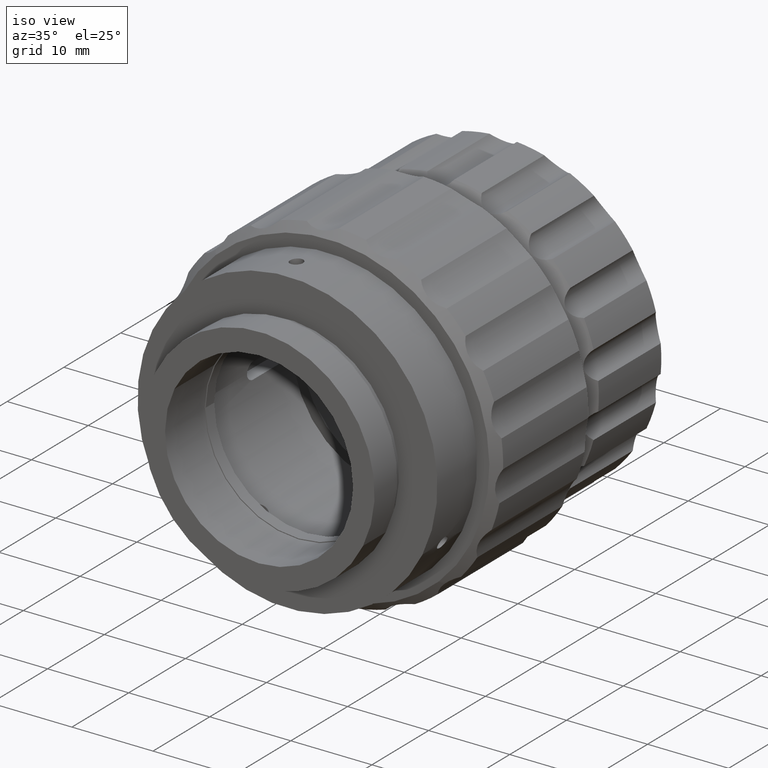
[diagram: clean part render]
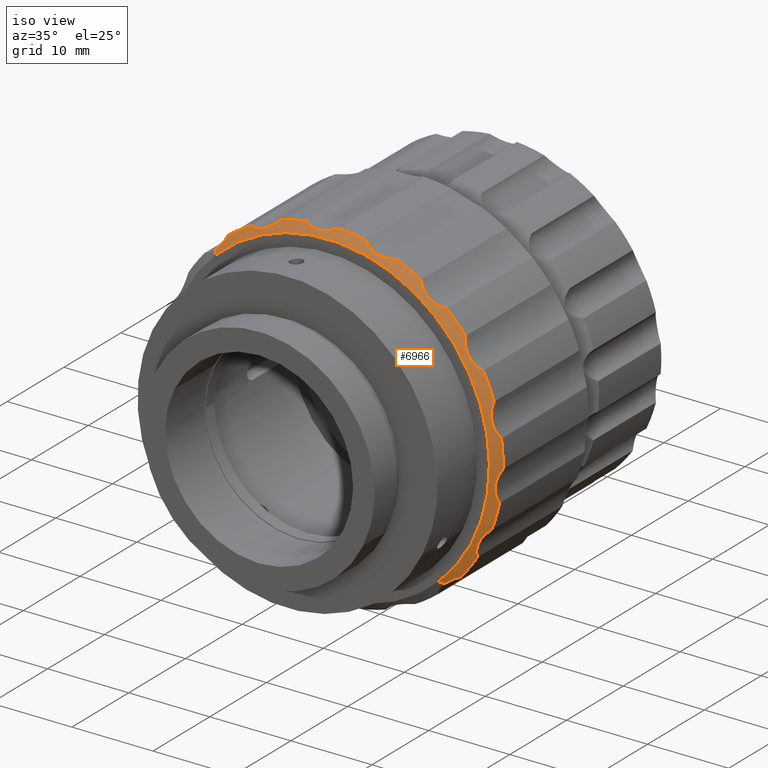
[diagram: same view with one face highlighted and labeled with its STEP entity id]
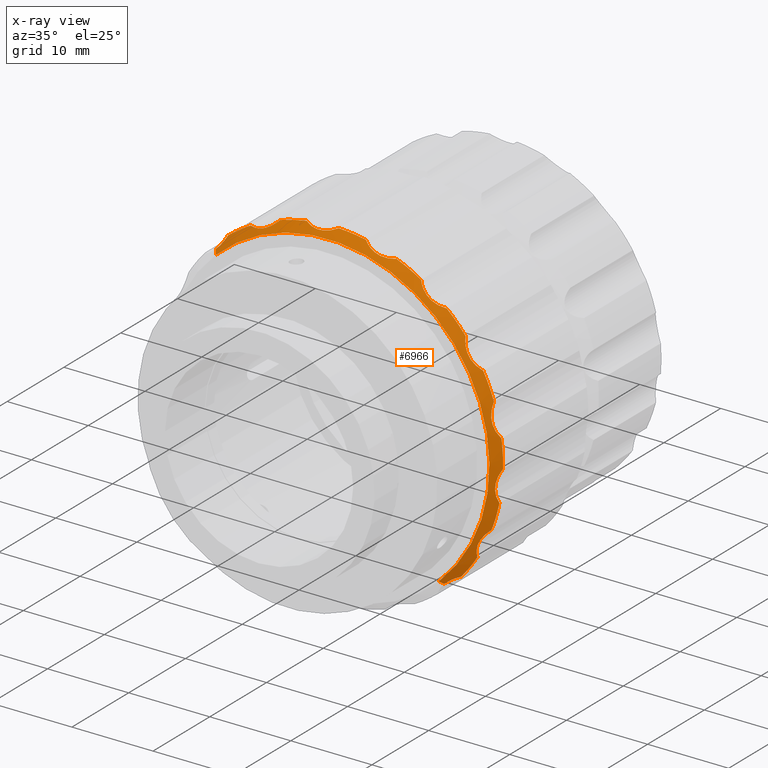
[diagram: x-ray of the same camera — body ghosted, the highlighted face saturated]
A machine part, iso view. The second image highlights one B-rep face of the part: STEP entity #6966.
The next image is the same camera in x-ray: the body ghosted, the highlighted face saturated — about 0% of this face is hidden behind the body in this view.
In plain terms, the highlighted conical surface has half-angle 45 deg.
Its self-contained STEP definition (entity closure, byte-faithful):
#27 = CARTESIAN_POINT ( 'NONE',  ( -0.5861440687324585008, -22.59411617957066909, 64.80552906689753456 ) ) ;
#46 = ORIENTED_EDGE ( 'NONE', *, *, #7699, .T. ) ;
#131 = CARTESIAN_POINT ( 'NONE',  ( 4.932007698426094322, -23.04857634177215431, 65.37785570986059724 ) ) ;
#179 = CARTESIAN_POINT ( 'NONE',  ( 4.055729949814518065, -22.99213833844308041, 65.37116788638181220 ) ) ;
#188 = AXIS2_PLACEMENT_3D ( 'NONE', #778, #8532, #5503 ) ;
#232 = CARTESIAN_POINT ( 'NONE',  ( 4.403457490567378230, -23.03731353386829284, 65.35543718338755070 ) ) ;
#248 = DIRECTION ( 'NONE',  ( 0.4859215937768002758, 0.7071067811865483499, -0.5136927142771378074 ) ) ;
#301 = CARTESIAN_POINT ( 'NONE',  ( -0.7231094470177840128, -22.67704321055556704, 64.67216818763810693 ) ) ;
#306 = CARTESIAN_POINT ( 'NONE',  ( 20.02060797558757343, -22.54875568700542843, 60.51190065472245294 ) ) ;
#316 = DIRECTION ( 'NONE',  ( 0.000000000000000000, -1.000000000000000000, -0.000000000000000000 ) ) ;
#358 = VERTEX_POINT ( 'NONE', #4219 ) ;
#403 = DIRECTION ( 'NONE',  ( 0.6871969081691013947, 0.000000000000000000, -0.7264712034229764415 ) ) ;
#436 = CARTESIAN_POINT ( 'NONE',  ( -2.619959736176024290, -23.02340400467829440, 63.54461650489573543 ) ) ;
#450 = CARTESIAN_POINT ( 'NONE',  ( 25.87301405888911532, -23.04893092694688761, 49.82380752600410290 ) ) ;
#492 = DIRECTION ( 'NONE',  ( 0.000000000000000000, -1.000000000000000000, -0.000000000000000000 ) ) ;
#533 = CARTESIAN_POINT ( 'NONE',  ( 26.88764276763581762, -22.62536031880735266, 44.32756536673588954 ) ) ;
#553 = DIRECTION ( 'NONE',  ( 0.6871969081691013947, 0.000000000000000000, -0.7264712034229764415 ) ) ;
#609 = B_SPLINE_CURVE_WITH_KNOTS ( 'NONE', 3,
 ( #9589, #8202, #4972, #8151, #7376, #9026, #2617, #1247, #436, #4236, #1154, #4329, #5688, #7431, #3582, #8046 ),
 .UNSPECIFIED., .F., .F.,
 ( 4, 2, 2, 2, 2, 2, 2, 4 ),
 ( 0.0003117507094537197996, 0.0007980243370904563935, 0.001284297964727193313, 0.002256845220000686884, 0.002743118847637433886, 0.003229392475274181322, 0.003715666102910928758, 0.004201939730547676194 ),
 .UNSPECIFIED. ) ;
#662 = CARTESIAN_POINT ( 'NONE',  ( 20.18645683651990197, -23.04875568700542132, 30.13098828869214074 ) ) ;
#666 = CARTESIAN_POINT ( 'NONE',  ( 5.971701014312827738, -22.54875568700542487, 44.90330644533106863 ) ) ;
#706 = CARTESIAN_POINT ( 'NONE',  ( 2.756519383870494888, -22.54875568700542487, 65.65571852400920250 ) ) ;
#724 = CARTESIAN_POINT ( 'NONE',  ( 19.71563917769486096, -23.54875568700542487, 30.37388237687154202 ) ) ;
#755 = CARTESIAN_POINT ( 'NONE',  ( -7.086710590305400181, -22.70210709760292289, 61.15566884071682807 ) ) ;
#778 = CARTESIAN_POINT ( 'NONE',  ( 5.971701014312827738, -22.54875568700542487, 44.90330644533106863 ) ) ;
#867 = CARTESIAN_POINT ( 'NONE',  ( 23.62438128198092357, -22.95779508110710410, 55.50509084758422773 ) ) ;
#970 = CARTESIAN_POINT ( 'NONE',  ( 22.48982439861022442, -22.81818094281915776, 57.43055063547916461 ) ) ;
#994 = CARTESIAN_POINT ( 'NONE',  ( 20.05923763177920449, -23.04875568700585475, 30.01064677516033541 ) ) ;
#1002 = VERTEX_POINT ( 'NONE', #9922 ) ;
#1017 = CARTESIAN_POINT ( 'NONE',  ( 22.54374001136113748, -22.87192481522068732, 57.26962888405567753 ) ) ;
#1033 = CARTESIAN_POINT ( 'NONE',  ( 5.971701014312827738, -23.54875568700542487, 44.90330644533106863 ) ) ;
#1069 = CARTESIAN_POINT ( 'NONE',  ( 18.77941298390832614, -22.99173279646782220, 60.98382839735489824 ) ) ;
#1106 = VERTEX_POINT ( 'NONE', #3901 ) ;
#1154 = CARTESIAN_POINT ( 'NONE',  ( -3.081959351282488324, -22.93828675366111014, 63.41939485134910370 ) ) ;
#1163 = CARTESIAN_POINT ( 'NONE',  ( 25.79590476522655607, -22.99213833844309463, 50.34437644417371160 ) ) ;
#1211 = CARTESIAN_POINT ( 'NONE',  ( 25.95465501981571421, -23.04857634177215076, 49.48257265190858334 ) ) ;
#1247 = CARTESIAN_POINT ( 'NONE',  ( -2.465273176354757290, -23.03967514796449834, 63.59733004851311478 ) ) ;
#1265 = VERTEX_POINT ( 'NONE', #2129 ) ;
#1300 = CARTESIAN_POINT ( 'NONE',  ( 10.04816151520260270, -22.54875568700542487, 65.50385182123521588 ) ) ;
#1326 = CARTESIAN_POINT ( 'NONE',  ( 11.17169804700255575, -22.99213833844309107, 64.79210550284244619 ) ) ;
#1342 = CARTESIAN_POINT ( 'NONE',  ( 24.75540914317802077, -22.95871898295861868, 36.46832021645066391 ) ) ;
#1343 = DIRECTION ( 'NONE',  ( 0.6871969081691013947, 0.000000000000000000, -0.7264712034229764415 ) ) ;
#1349 = EDGE_CURVE ( 'NONE', #6781, #4609, #2521, .T. ) ;
#1373 = CARTESIAN_POINT ( 'NONE',  ( 10.71770055815184186, -22.87192481522068377, 65.02876036587835529 ) ) ;
#1383 = CARTESIAN_POINT ( 'NONE',  ( 26.81362459809722409, -22.69496540806594354, 44.18337017047014825 ) ) ;
#1391 = VERTEX_POINT ( 'NONE', #4832 ) ;
#1428 = CARTESIAN_POINT ( 'NONE',  ( 12.50715101851027455, -22.99173279646783641, 64.39454974554864464 ) ) ;
#1434 = CARTESIAN_POINT ( 'NONE',  ( 26.30913429385233826, -22.95779508110709699, 41.67782032000739179 ) ) ;
#1488 = CARTESIAN_POINT ( 'NONE',  ( 26.42201852839815857, -22.70181177851245380, 40.84647012107388520 ) ) ;
#1510 = EDGE_CURVE ( 'NONE', #5965, #6230, #2823, .T. ) ;
#1558 = DIRECTION ( 'NONE',  ( 0.000000000000000000, -1.000000000000000000, -0.000000000000000000 ) ) ;
#1571 = EDGE_CURVE ( 'NONE', #2672, #7291, #6050, .T. ) ;
#1579 = VERTEX_POINT ( 'NONE', #9801 ) ;
#1605 = ORIENTED_EDGE ( 'NONE', *, *, #8129, .T. ) ;
#1634 = CARTESIAN_POINT ( 'NONE',  ( 5.971701014312827738, -22.54875568700542487, 44.90330644533106863 ) ) ;
#1662 = VERTEX_POINT ( 'NONE', #1300 ) ;
#1694 = B_SPLINE_CURVE_WITH_KNOTS ( 'NONE', 3,
 ( #9701, #4983, #5034, #8161, #3440, #8985, #1211, #450, #3540, #1163, #5134, #3391, #4293, #2833, #9650, #4390 ),
 .UNSPECIFIED., .F., .F.,
 ( 4, 2, 2, 2, 2, 2, 2, 4 ),
 ( 4.574723477263975321E-07, 0.001050828036897724638, 0.001576013319172722129, 0.002101198601447719621, 0.002626383883722717329, 0.003151569165997715038, 0.003676754448272712746, 0.004201939730547710888 ),
 .UNSPECIFIED. ) ;
#1711 = ORIENTED_EDGE ( 'NONE', *, *, #5449, .T. ) ;
#1739 = CARTESIAN_POINT ( 'NONE',  ( 2.756519383870494888, -22.54875568700542487, 65.65571852400920250 ) ) ;
#1811 = CARTESIAN_POINT ( 'NONE',  ( 22.40030687682570232, -22.69496540806594709, 57.74873350426444318 ) ) ;
#1831 = B_SPLINE_CURVE_WITH_KNOTS ( 'NONE', 3,
 ( #2388, #6044, #5277, #5459, #8352, #2869, #5936, #5169, #8302, #7583, #1342, #9175, #6759, #9896, #2920, #3731 ),
 .UNSPECIFIED., .F., .F.,
 ( 4, 2, 2, 2, 2, 2, 2, 4 ),
 ( 4.574723477260154673E-07, 0.001050828036897724204, 0.001576013319172721696, 0.002101198601447719621, 0.002626383883722717329, 0.003151569165997715038, 0.003676754448272712746, 0.004201939730547710021 ),
 .UNSPECIFIED. ) ;
#1948 = B_SPLINE_CURVE_WITH_KNOTS ( 'NONE', 3,
 ( #9185, #662, #6053, #9081, #4541, #7650, #2109, #10057, #5179, #4386 ),
 .UNSPECIFIED., .F., .F.,
 ( 4, 2, 2, 2, 4 ),
 ( 0.002105251945247679432, 0.002629423891572685995, 0.003153595837897692124, 0.003677767784222698254, 0.004201939730547704817 ),
 .UNSPECIFIED. ) ;
#2097 = ORIENTED_EDGE ( 'NONE', *, *, #5880, .T. ) ;
#2109 = CARTESIAN_POINT ( 'NONE',  ( 21.17811758413408896, -22.81773629560955996, 30.81205102822070074 ) ) ;
#2118 = CARTESIAN_POINT ( 'NONE',  ( -7.772237149069202822, -23.54875568700542487, 59.43273051379059524 ) ) ;
#2124 = CIRCLE ( 'NONE', #188, 21.00000000000000355 ) ;
#2129 = CARTESIAN_POINT ( 'NONE',  ( 26.51359359764580859, -22.54875568700542487, 40.54089322615874380 ) ) ;
#2150 = ORIENTED_EDGE ( 'NONE', *, *, #1510, .T. ) ;
#2160 = CARTESIAN_POINT ( 'NONE',  ( -4.147324391803083543, -22.54875568700542487, 63.30453805711130855 ) ) ;
#2194 = CARTESIAN_POINT ( 'NONE',  ( 26.61553824015348724, -22.87192481522068377, 43.72415769678872977 ) ) ;
#2307 = EDGE_CURVE ( 'NONE', #1579, #1662, #5411, .T. ) ;
#2388 = CARTESIAN_POINT ( 'NONE',  ( 23.78273269738049578, -22.54875568700542487, 33.77823788892388279 ) ) ;
#2394 = CARTESIAN_POINT ( 'NONE',  ( 19.39990107140675946, -22.82639049002025544, 60.68966259444772504 ) ) ;
#2397 = VERTEX_POINT ( 'NONE', #6173 ) ;
#2521 = LINE ( 'NONE', #8727, #5052 ) ;
#2539 = B_SPLINE_CURVE_WITH_KNOTS ( 'NONE', 3,
 ( #9547, #9597, #9450, #867, #4839, #3950, #5650, #4740, #4002, #7908, #7962, #1017, #970, #1811, #8005, #3242 ),
 .UNSPECIFIED., .F., .F.,
 ( 4, 2, 2, 2, 2, 2, 2, 4 ),
 ( 4.574723477170291889E-07, 0.001050828036897727023, 0.001576013319172723647, 0.002101198601447720055, 0.002626383883722716462, 0.003151569165997713303, 0.003676754448272709710, 0.004201939730547706552 ),
 .UNSPECIFIED. ) ;
#2549 = CARTESIAN_POINT ( 'NONE',  ( -0.7231094470177840128, -22.67704321055556704, 64.67216818763810693 ) ) ;
#2566 = CIRCLE ( 'NONE', #3868, 21.00000000000000355 ) ;
#2583 = CARTESIAN_POINT ( 'NONE',  ( 17.54029753547036208, -22.95871898295860447, 61.93692785366522457 ) ) ;
#2584 = ORIENTED_EDGE ( 'NONE', *, *, #3405, .T. ) ;
#2617 = CARTESIAN_POINT ( 'NONE',  ( -2.009641123701243703, -23.05825398763309053, 63.77830332537708102 ) ) ;
#2672 = VERTEX_POINT ( 'NONE', #2118 ) ;
#2736 = AXIS2_PLACEMENT_3D ( 'NONE', #8932, #5700, #403 ) ;
#2823 = CIRCLE ( 'NONE', #8500, 21.00000000000000355 ) ;
#2833 = CARTESIAN_POINT ( 'NONE',  ( 25.80293551689209508, -22.69496540806593998, 51.35514533171678409 ) ) ;
#2852 = CARTESIAN_POINT ( 'NONE',  ( 11.49307483379933359, -23.03731353386829284, 64.65839365399234850 ) ) ;
#2869 = CARTESIAN_POINT ( 'NONE',  ( 24.15359054204219902, -23.03694059444922004, 35.40683691101386188 ) ) ;
#2909 = CARTESIAN_POINT ( 'NONE',  ( 26.50754813295544920, -22.95871898295860802, 43.40141867604339865 ) ) ;
#2920 = CARTESIAN_POINT ( 'NONE',  ( 25.42934209047872685, -22.62536031880736687, 37.20861340602899503 ) ) ;
#2953 = CARTESIAN_POINT ( 'NONE',  ( 10.17071046189307459, -22.62536031880736331, 65.40151165644928710 ) ) ;
#3013 = CARTESIAN_POINT ( 'NONE',  ( 26.46131453285194013, -22.99213833844307686, 43.23596276421825735 ) ) ;
#3062 = CARTESIAN_POINT ( 'NONE',  ( 17.20908981437813168, -22.81818094281916132, 62.32459629696486303 ) ) ;
#3111 = EDGE_CURVE ( 'NONE', #5049, #1265, #3592, .T. ) ;
#3141 = VERTEX_POINT ( 'NONE', #3374 ) ;
#3171 = CARTESIAN_POINT ( 'NONE',  ( 3.061537790072915488, -22.69496540806594709, 65.55361000049583708 ) ) ;
#3218 = CARTESIAN_POINT ( 'NONE',  ( 3.884759304662476875, -22.95871898295861158, 65.38796797664078042 ) ) ;
#3225 = ORIENTED_EDGE ( 'NONE', *, *, #5018, .F. ) ;
#3242 = CARTESIAN_POINT ( 'NONE',  ( 22.33622624902998410, -22.54875568700542487, 58.06394145441422694 ) ) ;
#3247 = ORIENTED_EDGE ( 'NONE', *, *, #5497, .T. ) ;
#3285 = AXIS2_PLACEMENT_3D ( 'NONE', #1033, #4114, #7870 ) ;
#3306 = CARTESIAN_POINT ( 'NONE',  ( 5.971701014312827738, -22.54875568700542487, 44.90330644533106863 ) ) ;
#3343 = CARTESIAN_POINT ( 'NONE',  ( 19.71018308715769152, -22.70181177851245735, 60.58538276585824178 ) ) ;
#3374 = CARTESIAN_POINT ( 'NONE',  ( 23.78273269738049578, -22.54875568700542487, 33.77823788892388279 ) ) ;
#3391 = CARTESIAN_POINT ( 'NONE',  ( 25.77385514411945522, -22.87192481522069443, 50.85587723429073748 ) ) ;
#3405 = EDGE_CURVE ( 'NONE', #6230, #7125, #9154, .T. ) ;
#3429 = DIRECTION ( 'NONE',  ( 0.6871969081691013947, 0.000000000000000000, -0.7264712034229764415 ) ) ;
#3440 = CARTESIAN_POINT ( 'NONE',  ( 26.11933786574321559, -22.99173279646783286, 48.98906236664169711 ) ) ;
#3532 = DIRECTION ( 'NONE',  ( 0.6871969081691013947, 0.000000000000000000, -0.7264712034229764415 ) ) ;
#3540 = CARTESIAN_POINT ( 'NONE',  ( 25.84079530073379516, -23.03731353386829284, 49.99920005819603830 ) ) ;
#3579 = DIRECTION ( 'NONE',  ( 0.000000000000000000, -1.000000000000000000, -0.000000000000000000 ) ) ;
#3582 = CARTESIAN_POINT ( 'NONE',  ( -3.999492946387804171, -22.61968458287763539, 63.30488604135489794 ) ) ;
#3592 = CIRCLE ( 'NONE', #9609, 21.00000000000000355 ) ;
#3600 = B_SPLINE_CURVE_WITH_KNOTS ( 'NONE', 3,
 ( #6919, #755, #5994, #3737, #10053, #4486, #7590, #4432 ),
 .UNSPECIFIED., .F., .F.,
 ( 4, 2, 2, 4 ),
 ( 4.574723477181721011E-07, 0.001052854708797686329, 0.001579053327022678001, 0.002105251945247671626 ),
 .UNSPECIFIED. ) ;
#3613 = CARTESIAN_POINT ( 'NONE',  ( 11.01678416266043214, -22.95871898295861513, 64.86636782824672309 ) ) ;
#3731 = CARTESIAN_POINT ( 'NONE',  ( 25.55140787947225434, -22.54875568700542487, 37.31152937573604333 ) ) ;
#3737 = CARTESIAN_POINT ( 'NONE',  ( -7.535760267474191032, -22.95831360585714620, 60.44493480536283414 ) ) ;
#3868 = AXIS2_PLACEMENT_3D ( 'NONE', #3306, #316, #6377 ) ;
#3884 = CARTESIAN_POINT ( 'NONE',  ( 6.111024914388428542, -22.82639049002025544, 65.62783746755101788 ) ) ;
#3901 = CARTESIAN_POINT ( 'NONE',  ( 24.51180884453873077, -22.54875568700542843, 54.76557807227362673 ) ) ;
#3928 = EDGE_CURVE ( 'NONE', #1662, #8272, #2124, .T. ) ;
#3950 = CARTESIAN_POINT ( 'NONE',  ( 23.28682964116116949, -23.03694059444923070, 55.90104989798838631 ) ) ;
#4002 = CARTESIAN_POINT ( 'NONE',  ( 22.89964403311761743, -23.03731353386827863, 56.48751054524325355 ) ) ;
#4027 = CARTESIAN_POINT ( 'NONE',  ( 6.415744510111759169, -22.70181177851245735, 65.74739991956390384 ) ) ;
#4056 = ORIENTED_EDGE ( 'NONE', *, *, #1571, .F. ) ;
#4058 = AXIS2_PLACEMENT_3D ( 'NONE', #7277, #492, #3429 ) ;
#4114 = DIRECTION ( 'NONE',  ( 0.000000000000000000, -1.000000000000000000, -0.000000000000000000 ) ) ;
#4148 = CARTESIAN_POINT ( 'NONE',  ( 18.05415415477585128, -23.04893092694687695, 61.46494639708834029 ) ) ;
#4219 = CARTESIAN_POINT ( 'NONE',  ( 20.02060797558757343, -22.54875568700542843, 60.51190065472245294 ) ) ;
#4236 = CARTESIAN_POINT ( 'NONE',  ( -2.927767309493298775, -22.97272656315720596, 63.45586561015058180 ) ) ;
#4239 = CARTESIAN_POINT ( 'NONE',  ( 5.971701014312827738, -22.54875568700542487, 44.90330644533106863 ) ) ;
#4293 = CARTESIAN_POINT ( 'NONE',  ( 25.77822952115835164, -22.81818094281916132, 51.02553444222788670 ) ) ;
#4329 = CARTESIAN_POINT ( 'NONE',  ( -3.390935056502712985, -22.85245896947732547, 63.36138353499843845 ) ) ;
#4361 = CARTESIAN_POINT ( 'NONE',  ( 10.29986188886807064, -22.69496540806594354, 65.30357875616402907 ) ) ;
#4386 = CARTESIAN_POINT ( 'NONE',  ( 21.77406639121481646, -22.54875568700542487, 31.07271540608443061 ) ) ;
#4390 = CARTESIAN_POINT ( 'NONE',  ( 25.85052689210476018, -22.54875568700542487, 51.67326078198870931 ) ) ;
#4410 = CARTESIAN_POINT ( 'NONE',  ( 10.57296029466256826, -22.81818094281916132, 65.11737729148836706 ) ) ;
#4417 = CARTESIAN_POINT ( 'NONE',  ( 26.35572851109740355, -23.04893092694688761, 42.72041506153360046 ) ) ;
#4432 = CARTESIAN_POINT ( 'NONE',  ( -8.115835603153543687, -23.04875568700585120, 59.79596611550180540 ) ) ;
#4450 = B_SPLINE_CURVE_WITH_KNOTS ( 'NONE', 3,
 ( #8238, #1488, #6798, #1434, #9009, #4469, #4570, #4417, #5315, #3013, #2909, #2194, #9215, #1383, #533, #9060 ),
 .UNSPECIFIED., .F., .F.,
 ( 4, 2, 2, 2, 2, 2, 2, 4 ),
 ( 4.574723477308324378E-07, 0.001050828036897723987, 0.001576013319172722563, 0.002101198601447721356, 0.002626383883722719931, 0.003151569165997718074, 0.003676754448272716649, 0.004201939730547715225 ),
 .UNSPECIFIED. ) ;
#4462 = ORIENTED_EDGE ( 'NONE', *, *, #7245, .T. ) ;
#4469 = CARTESIAN_POINT ( 'NONE',  ( 26.30507230667972962, -23.03694059444922715, 42.19811656262049127 ) ) ;
#4486 = CARTESIAN_POINT ( 'NONE',  ( -7.867960086869544512, -23.03724811655154525, 60.04316534937562722 ) ) ;
#4541 = CARTESIAN_POINT ( 'NONE',  ( 20.73961185169606125, -22.95820946754227876, 30.55386880338712530 ) ) ;
#4570 = CARTESIAN_POINT ( 'NONE',  ( 26.31573671908812528, -23.04857634177214010, 42.37183631523386396 ) ) ;
#4577 = ORIENTED_EDGE ( 'NONE', *, *, #2307, .T. ) ;
#4609 = VERTEX_POINT ( 'NONE', #994 ) ;
#4624 = CARTESIAN_POINT ( 'NONE',  ( 2.906680122588682025, -22.62536031880736331, 65.60146443466135224 ) ) ;
#4740 = CARTESIAN_POINT ( 'NONE',  ( 22.98990754140558579, -23.04893092694687340, 56.33371494128360979 ) ) ;
#4832 = CARTESIAN_POINT ( 'NONE',  ( 21.77406639121481646, -22.54875568700542487, 31.07271540608443061 ) ) ;
#4839 = CARTESIAN_POINT ( 'NONE',  ( 23.50687586407583396, -22.99173279646782930, 55.63355877851874709 ) ) ;
#4880 = EDGE_CURVE ( 'NONE', #3141, #5049, #1831, .T. ) ;
#4881 = FACE_OUTER_BOUND ( 'NONE', #9192, .T. ) ;
#4972 = CARTESIAN_POINT ( 'NONE',  ( -0.9470438286994390387, -22.79575936628023314, 64.46958993440084384 ) ) ;
#4983 = CARTESIAN_POINT ( 'NONE',  ( 26.57623321609886347, -22.70181177851246090, 48.08554781491326935 ) ) ;
#5006 = ORIENTED_EDGE ( 'NONE', *, *, #9522, .T. ) ;
#5018 = EDGE_CURVE ( 'NONE', #6781, #2672, #5365, .T. ) ;
#5034 = CARTESIAN_POINT ( 'NONE',  ( 26.40557318389066666, -22.82639049002025544, 48.36487623336692110 ) ) ;
#5049 = VERTEX_POINT ( 'NONE', #9416 ) ;
#5052 = VECTOR ( 'NONE', #248, 1000.000000000000000 ) ;
#5058 = CARTESIAN_POINT ( 'NONE',  ( -0.5212846077454740268, -22.54875568700542487, 64.87431387389470672 ) ) ;
#5101 = CARTESIAN_POINT ( 'NONE',  ( 10.04816151520260270, -22.54875568700542487, 65.50385182123521588 ) ) ;
#5134 = CARTESIAN_POINT ( 'NONE',  ( 25.78276088339968908, -22.95871898295861158, 50.51566696611504881 ) ) ;
#5169 = CARTESIAN_POINT ( 'NONE',  ( 24.37982841098757092, -23.04893092694688406, 35.88031151399481189 ) ) ;
#5173 = CARTESIAN_POINT ( 'NONE',  ( 26.76679908631471605, -22.54875568700542843, 47.82971997998799907 ) ) ;
#5179 = CARTESIAN_POINT ( 'NONE',  ( 21.62445197185772727, -22.62521251149066259, 31.01786103261689576 ) ) ;
#5256 = CARTESIAN_POINT ( 'NONE',  ( 12.67974298517962950, -22.95779508110710765, 64.37166862763770325 ) ) ;
#5277 = CARTESIAN_POINT ( 'NONE',  ( 23.85000941103615446, -22.82639049002025189, 34.42038289740119694 ) ) ;
#5287 = CARTESIAN_POINT ( 'NONE',  ( 6.700777161470981902, -22.54875568700542132, 65.89064662868076994 ) ) ;
#5315 = CARTESIAN_POINT ( 'NONE',  ( 26.38544056080650080, -23.03731353386828218, 42.89624959405737314 ) ) ;
#5346 = AXIS2_PLACEMENT_3D ( 'NONE', #666, #1558, #553 ) ;
#5365 = CIRCLE ( 'NONE', #3285, 20.00000000000000355 ) ;
#5411 = B_SPLINE_CURVE_WITH_KNOTS ( 'NONE', 3,
 ( #8179, #6794, #5819, #5256, #1428, #9930, #9878, #7463, #2852, #1326, #3613, #1373, #4410, #4361, #2953, #5101 ),
 .UNSPECIFIED., .F., .F.,
 ( 4, 2, 2, 2, 2, 2, 2, 4 ),
 ( 4.574723477187013908E-07, 0.001050828036897713796, 0.001576013319172714106, 0.002101198601447714850, 0.002626383883722714727, 0.003151569165997715471, 0.003676754448272715348, 0.004201939730547716093 ),
 .UNSPECIFIED. ) ;
#5449 = EDGE_CURVE ( 'NONE', #8561, #358, #9530, .T. ) ;
#5459 = CARTESIAN_POINT ( 'NONE',  ( 23.97945576594370465, -22.95779508110710054, 34.91652908977274450 ) ) ;
#5497 = EDGE_CURVE ( 'NONE', #9642, #2397, #1694, .T. ) ;
#5503 = DIRECTION ( 'NONE',  ( 0.6871969081691013947, 0.000000000000000000, -0.7264712034229764415 ) ) ;
#5528 = CARTESIAN_POINT ( 'NONE',  ( 3.548171129511904276, -22.87192481522069798, 65.43827442864358090 ) ) ;
#5568 = CARTESIAN_POINT ( 'NONE',  ( -0.5212846077454740268, -22.54875568700542487, 64.87431387389470672 ) ) ;
#5597 = DIRECTION ( 'NONE',  ( 0.000000000000000000, 1.000000000000000000, 0.000000000000000000 ) ) ;
#5641 = EDGE_CURVE ( 'NONE', #7810, #9642, #8256, .T. ) ;
#5650 = CARTESIAN_POINT ( 'NONE',  ( 23.18333415048806145, -23.04857634177214720, 56.04098190129859347 ) ) ;
#5654 = CARTESIAN_POINT ( 'NONE',  ( 17.66046975826547794, -22.99213833844308752, 61.81416042555461132 ) ) ;
#5688 = CARTESIAN_POINT ( 'NONE',  ( -3.545929084040576829, -22.80088657216805004, 63.33991907532846000 ) ) ;
#5700 = DIRECTION ( 'NONE',  ( 0.000000000000000000, -1.000000000000000000, -0.000000000000000000 ) ) ;
#5702 = CARTESIAN_POINT ( 'NONE',  ( 17.91673300760224663, -23.03731353386828573, 61.57859505319679272 ) ) ;
#5819 = CARTESIAN_POINT ( 'NONE',  ( 13.19082972568994450, -22.82639049002026610, 64.33034373588725430 ) ) ;
#5875 = DIRECTION ( 'NONE',  ( 0.000000000000000000, -1.000000000000000000, -0.000000000000000000 ) ) ;
#5880 = EDGE_CURVE ( 'NONE', #7125, #7238, #609, .T. ) ;
#5936 = CARTESIAN_POINT ( 'NONE',  ( 24.22302746637473092, -23.04857634177214365, 35.56643263676901512 ) ) ;
#5965 = VERTEX_POINT ( 'NONE', #706 ) ;
#5994 = CARTESIAN_POINT ( 'NONE',  ( -7.243644349763088464, -22.82687343875511132, 60.86766424235284489 ) ) ;
#6044 = CARTESIAN_POINT ( 'NONE',  ( 23.80119373395640281, -22.70181177851246090, 34.09670676046741988 ) ) ;
#6050 = LINE ( 'NONE', #8461, #6864 ) ;
#6053 = CARTESIAN_POINT ( 'NONE',  ( 20.32204832263214200, -23.03700209030282409, 30.24625293724757213 ) ) ;
#6173 = CARTESIAN_POINT ( 'NONE',  ( 25.85052689210476018, -22.54875568700542487, 51.67326078198870931 ) ) ;
#6227 = CARTESIAN_POINT ( 'NONE',  ( 16.84812234797788122, -22.54875568700542487, 62.86725531445769377 ) ) ;
#6230 = VERTEX_POINT ( 'NONE', #5058 ) ;
#6306 = ORIENTED_EDGE ( 'NONE', *, *, #5641, .T. ) ;
#6377 = DIRECTION ( 'NONE',  ( 0.6871969081691013947, 0.000000000000000000, -0.7264712034229764415 ) ) ;
#6468 = CARTESIAN_POINT ( 'NONE',  ( 18.33603630828612907, -23.04857634177213654, 61.25602311611555706 ) ) ;
#6508 = DIRECTION ( 'NONE',  ( 0.000000000000000000, -1.000000000000000000, -0.000000000000000000 ) ) ;
#6615 = EDGE_CURVE ( 'NONE', #7271, #1579, #8558, .T. ) ;
#6695 = DIRECTION ( 'NONE',  ( 0.6871969081691013947, 0.000000000000000000, -0.7264712034229764415 ) ) ;
#6715 = ORIENTED_EDGE ( 'NONE', *, *, #8870, .T. ) ;
#6727 = ORIENTED_EDGE ( 'NONE', *, *, #8892, .T. ) ;
#6759 = CARTESIAN_POINT ( 'NONE',  ( 25.07967441454076507, -22.81818094281916487, 36.86181406675773076 ) ) ;
#6781 = VERTEX_POINT ( 'NONE', #724 ) ;
#6794 = CARTESIAN_POINT ( 'NONE',  ( 13.51806524817382815, -22.70181177851246090, 64.33847544996341128 ) ) ;
#6798 = CARTESIAN_POINT ( 'NONE',  ( 26.35718650118349160, -22.82639049002025189, 41.16732214334637519 ) ) ;
#6864 = VECTOR ( 'NONE', #8257, 1000.000000000000000 ) ;
#6919 = CARTESIAN_POINT ( 'NONE',  ( -6.960196484679476825, -22.54875568700542843, 61.44918288254516625 ) ) ;
#6920 = AXIS2_PLACEMENT_3D ( 'NONE', #1634, #3579, #1343 ) ;
#6966 = ADVANCED_FACE ( 'NONE', ( #4881 ), #7247, .T. ) ;
#6984 = B_SPLINE_CURVE_WITH_KNOTS ( 'NONE', 3,
 ( #7065, #4027, #3884, #8555, #8711, #7117, #131, #9331, #232, #179, #3218, #5528, #8663, #3171, #4624, #1739 ),
 .UNSPECIFIED., .F., .F.,
 ( 4, 2, 2, 2, 2, 2, 2, 4 ),
 ( 4.574723477174520172E-07, 0.001050828036897712061, 0.001576013319172706951, 0.002101198601447701840, 0.002626383883722696946, 0.003151569165997691619, 0.003676754448272686725, 0.004201939730547681398 ),
 .UNSPECIFIED. ) ;
#7065 = CARTESIAN_POINT ( 'NONE',  ( 6.700777161470981902, -22.54875568700542132, 65.89064662868076994 ) ) ;
#7087 = DIRECTION ( 'NONE',  ( -0.6871969081691013947, 0.000000000000000000, 0.7264712034229764415 ) ) ;
#7117 = CARTESIAN_POINT ( 'NONE',  ( 5.104940113431729820, -23.03694059444923070, 65.39751943230554332 ) ) ;
#7125 = VERTEX_POINT ( 'NONE', #301 ) ;
#7190 = CARTESIAN_POINT ( 'NONE',  ( 17.01614590934047300, -22.69496540806594709, 62.59297359519194970 ) ) ;
#7217 = DIRECTION ( 'NONE',  ( 0.6871969081691013947, 0.000000000000000000, -0.7264712034229764415 ) ) ;
#7237 = CARTESIAN_POINT ( 'NONE',  ( 17.31479239831139694, -22.87192481522069087, 62.19181954022879921 ) ) ;
#7238 = VERTEX_POINT ( 'NONE', #2160 ) ;
#7245 = EDGE_CURVE ( 'NONE', #4609, #1391, #1948, .T. ) ;
#7247 = CONICAL_SURFACE ( 'NONE', #8070, 21.00000000000000355, 0.7853981633974471688 ) ;
#7271 = VERTEX_POINT ( 'NONE', #7744 ) ;
#7277 = CARTESIAN_POINT ( 'NONE',  ( 5.971701014312827738, -22.54875568700542487, 44.90330644533106863 ) ) ;
#7289 = CARTESIAN_POINT ( 'NONE',  ( 18.48114982098426395, -23.03694059444922004, 61.15992758774674343 ) ) ;
#7291 = VERTEX_POINT ( 'NONE', #7946 ) ;
#7376 = CARTESIAN_POINT ( 'NONE',  ( -1.320116429180307582, -22.93439995369109496, 64.18556821756179431 ) ) ;
#7431 = CARTESIAN_POINT ( 'NONE',  ( -3.849752806613738088, -22.68460864390044307, 63.31177112413989505 ) ) ;
#7435 = CIRCLE ( 'NONE', #8752, 21.00000000000000355 ) ;
#7463 = CARTESIAN_POINT ( 'NONE',  ( 11.66107860138928132, -23.04893092694688050, 64.59859965093728817 ) ) ;
#7467 = CARTESIAN_POINT ( 'NONE',  ( 5.971701014312827738, -22.54875568700542487, 44.90330644533106863 ) ) ;
#7547 = ORIENTED_EDGE ( 'NONE', *, *, #3111, .T. ) ;
#7583 = CARTESIAN_POINT ( 'NONE',  ( 24.65537451565187510, -22.99213833844309463, 36.32865533957706106 ) ) ;
#7590 = CARTESIAN_POINT ( 'NONE',  ( -7.988124514806902887, -23.04875568700542132, 59.91677292055827309 ) ) ;
#7650 = CARTESIAN_POINT ( 'NONE',  ( 21.02928114039849916, -22.87142862954834044, 30.73121794318547018 ) ) ;
#7699 = EDGE_CURVE ( 'NONE', #2397, #1106, #2566, .T. ) ;
#7744 = CARTESIAN_POINT ( 'NONE',  ( 16.84812234797788122, -22.54875568700542487, 62.86725531445769377 ) ) ;
#7810 = VERTEX_POINT ( 'NONE', #8994 ) ;
#7852 = ORIENTED_EDGE ( 'NONE', *, *, #3928, .T. ) ;
#7855 = CARTESIAN_POINT ( 'NONE',  ( 5.971701014312827738, -22.54875568700542487, 44.90330644533106863 ) ) ;
#7870 = DIRECTION ( 'NONE',  ( 0.6871969081691015058, 0.000000000000000000, -0.7264712034229763304 ) ) ;
#7908 = CARTESIAN_POINT ( 'NONE',  ( 22.73940345115362760, -22.99213833844308752, 56.79651678062787568 ) ) ;
#7946 = CARTESIAN_POINT ( 'NONE',  ( -8.115835603153543687, -23.04875568700585120, 59.79596611550180540 ) ) ;
#7962 = CARTESIAN_POINT ( 'NONE',  ( 22.66846743352773075, -22.95871898295861158, 56.95298174776044675 ) ) ;
#7970 = ORIENTED_EDGE ( 'NONE', *, *, #8957, .T. ) ;
#8005 = CARTESIAN_POINT ( 'NONE',  ( 22.36432119875464153, -22.62536031880736331, 57.90677139535930706 ) ) ;
#8046 = CARTESIAN_POINT ( 'NONE',  ( -4.147324391803083543, -22.54875568700542487, 63.30453805711130855 ) ) ;
#8059 = CARTESIAN_POINT ( 'NONE',  ( 16.92827829103995896, -22.62536031880736687, 62.72917280848687227 ) ) ;
#8070 = AXIS2_PLACEMENT_3D ( 'NONE', #7855, #5597, #7087 ) ;
#8129 = EDGE_CURVE ( 'NONE', #1106, #8561, #2539, .T. ) ;
#8151 = CARTESIAN_POINT ( 'NONE',  ( -1.190552228959233627, -22.89299297332935268, 64.27814283824676522 ) ) ;
#8161 = CARTESIAN_POINT ( 'NONE',  ( 26.18581821970001755, -22.95779508110709699, 48.82815278006143700 ) ) ;
#8179 = CARTESIAN_POINT ( 'NONE',  ( 13.83490158732221609, -22.54875568700542487, 64.37559641720199011 ) ) ;
#8202 = CARTESIAN_POINT ( 'NONE',  ( -0.8320373059360943735, -22.73969801011140746, 64.56912915799806285 ) ) ;
#8238 = CARTESIAN_POINT ( 'NONE',  ( 26.51359359764580859, -22.54875568700542487, 40.54089322615874380 ) ) ;
#8256 = CIRCLE ( 'NONE', #5346, 21.00000000000000355 ) ;
#8257 = DIRECTION ( 'NONE',  ( -0.4859215937768002203, 0.7071067811865483499, 0.5136927142771378074 ) ) ;
#8272 = VERTEX_POINT ( 'NONE', #5287 ) ;
#8302 = CARTESIAN_POINT ( 'NONE',  ( 24.46788755686300831, -23.03731353386828573, 36.03537980718672884 ) ) ;
#8352 = CARTESIAN_POINT ( 'NONE',  ( 24.03195954875208074, -22.99173279646782220, 35.08252573222812742 ) ) ;
#8461 = CARTESIAN_POINT ( 'NONE',  ( -8.459434057238302884, -22.54875568700542487, 60.15920171721357690 ) ) ;
#8500 = AXIS2_PLACEMENT_3D ( 'NONE', #4239, #6508, #3532 ) ;
#8532 = DIRECTION ( 'NONE',  ( 0.000000000000000000, -1.000000000000000000, -0.000000000000000000 ) ) ;
#8555 = CARTESIAN_POINT ( 'NONE',  ( 5.616626530349977386, -22.95779508110709344, 65.49186820314248791 ) ) ;
#8558 = CIRCLE ( 'NONE', #6920, 21.00000000000000355 ) ;
#8561 = VERTEX_POINT ( 'NONE', #8921 ) ;
#8581 = ORIENTED_EDGE ( 'NONE', *, *, #4880, .T. ) ;
#8624 = ORIENTED_EDGE ( 'NONE', *, *, #9576, .T. ) ;
#8654 = CARTESIAN_POINT ( 'NONE',  ( -0.6533781190440633990, -22.63693407391833645, 64.73812971888708034 ) ) ;
#8663 = CARTESIAN_POINT ( 'NONE',  ( 3.381850998382214701, -22.81818094281916487, 65.47204301405244564 ) ) ;
#8710 = EDGE_CURVE ( 'NONE', #8272, #5965, #6984, .T. ) ;
#8711 = CARTESIAN_POINT ( 'NONE',  ( 5.446617329636502802, -22.99173279646783286, 65.45433949162165277 ) ) ;
#8727 = CARTESIAN_POINT ( 'NONE',  ( 20.40283608586396369, -22.54875568700542487, 29.64741117344856747 ) ) ;
#8752 = AXIS2_PLACEMENT_3D ( 'NONE', #7467, #5875, #6695 ) ;
#8870 = EDGE_CURVE ( 'NONE', #1265, #7810, #4450, .T. ) ;
#8892 = EDGE_CURVE ( 'NONE', #7238, #1002, #7435, .T. ) ;
#8921 = CARTESIAN_POINT ( 'NONE',  ( 22.33622624902998410, -22.54875568700542487, 58.06394145441422694 ) ) ;
#8932 = CARTESIAN_POINT ( 'NONE',  ( 5.971701014312827738, -22.54875568700542487, 44.90330644533106863 ) ) ;
#8957 = EDGE_CURVE ( 'NONE', #358, #7271, #9939, .T. ) ;
#8985 = CARTESIAN_POINT ( 'NONE',  ( 26.00404940485784877, -23.03694059444923070, 49.31568203843260534 ) ) ;
#8994 = CARTESIAN_POINT ( 'NONE',  ( 26.96714775409374809, -22.54875568700542487, 44.46602370267738280 ) ) ;
#9009 = CARTESIAN_POINT ( 'NONE',  ( 26.30169751567655112, -22.99173279646781864, 41.85176349131922535 ) ) ;
#9026 = CARTESIAN_POINT ( 'NONE',  ( -1.723779831415612751, -23.03084986932621092, 63.92598415447361759 ) ) ;
#9060 = CARTESIAN_POINT ( 'NONE',  ( 26.96714775409374809, -22.54875568700542487, 44.46602370267738280 ) ) ;
#9081 = CARTESIAN_POINT ( 'NONE',  ( 20.59808288178473745, -22.99166311588373190, 30.45710769822380826 ) ) ;
#9154 = B_SPLINE_CURVE_WITH_KNOTS ( 'NONE', 3,
 ( #5568, #27, #8654, #2549 ),
 .UNSPECIFIED., .F., .F.,
 ( 4, 4 ),
 ( 4.574723477147716873E-07, 0.0003117507094537197996 ),
 .UNSPECIFIED. ) ;
#9168 = ORIENTED_EDGE ( 'NONE', *, *, #8710, .T. ) ;
#9175 = CARTESIAN_POINT ( 'NONE',  ( 24.96726989616200143, -22.87192481522068732, 36.73466090074310131 ) ) ;
#9185 = CARTESIAN_POINT ( 'NONE',  ( 20.05923763177920449, -23.04875568700585475, 30.01064677516033541 ) ) ;
#9192 = EDGE_LOOP ( 'NONE', ( #3225, #9745, #4462, #5006, #8581, #7547, #6715, #6306, #3247, #46, #1605, #1711, #7970, #9288, #4577, #7852, #9168, #2150, #2584, #2097, #6727, #8624, #4056 ) ) ;
#9215 = CARTESIAN_POINT ( 'NONE',  ( 26.67767499255236885, -22.81818094281915421, 43.88208719808861247 ) ) ;
#9288 = ORIENTED_EDGE ( 'NONE', *, *, #6615, .T. ) ;
#9331 = CARTESIAN_POINT ( 'NONE',  ( 4.581780144730796422, -23.04893092694689472, 65.35670987261983100 ) ) ;
#9369 = CARTESIAN_POINT ( 'NONE',  ( 18.93377057816707065, -22.95779508110710054, 60.90329725052154686 ) ) ;
#9416 = CARTESIAN_POINT ( 'NONE',  ( 25.55140787947225434, -22.54875568700542487, 37.31152937573604333 ) ) ;
#9450 = CARTESIAN_POINT ( 'NONE',  ( 23.98933331111183520, -22.82639049002026255, 55.14491391962122435 ) ) ;
#9483 = DIRECTION ( 'NONE',  ( 0.000000000000000000, -1.000000000000000000, -0.000000000000000000 ) ) ;
#9522 = EDGE_CURVE ( 'NONE', #1391, #3141, #9919, .T. ) ;
#9530 = CIRCLE ( 'NONE', #2736, 21.00000000000000355 ) ;
#9531 = CARTESIAN_POINT ( 'NONE',  ( 5.971701014312827738, -22.54875568700542487, 44.90330644533106863 ) ) ;
#9547 = CARTESIAN_POINT ( 'NONE',  ( 24.51180884453873077, -22.54875568700542843, 54.76557807227362673 ) ) ;
#9576 = EDGE_CURVE ( 'NONE', #1002, #7291, #3600, .T. ) ;
#9589 = CARTESIAN_POINT ( 'NONE',  ( -0.7231094470177840128, -22.67704321055556704, 64.67216818763810693 ) ) ;
#9597 = CARTESIAN_POINT ( 'NONE',  ( 24.24523722975539641, -22.70181177851246090, 54.94080023470031904 ) ) ;
#9609 = AXIS2_PLACEMENT_3D ( 'NONE', #9531, #9483, #7217 ) ;
#9642 = VERTEX_POINT ( 'NONE', #5173 ) ;
#9650 = CARTESIAN_POINT ( 'NONE',  ( 25.82317218291790439, -22.62536031880736687, 51.51596019855477948 ) ) ;
#9701 = CARTESIAN_POINT ( 'NONE',  ( 26.76679908631471605, -22.54875568700542843, 47.82971997998799907 ) ) ;
#9745 = ORIENTED_EDGE ( 'NONE', *, *, #1349, .T. ) ;
#9801 = CARTESIAN_POINT ( 'NONE',  ( 13.83490158732221609, -22.54875568700542487, 64.37559641720199011 ) ) ;
#9878 = CARTESIAN_POINT ( 'NONE',  ( 11.99741715147649579, -23.04857634177215431, 64.49868536004134967 ) ) ;
#9896 = CARTESIAN_POINT ( 'NONE',  ( 25.31047010106554396, -22.69496540806595064, 37.09842994909958236 ) ) ;
#9919 = CIRCLE ( 'NONE', #4058, 21.00000000000000355 ) ;
#9922 = CARTESIAN_POINT ( 'NONE',  ( -6.960196484679476825, -22.54875568700542843, 61.44918288254516625 ) ) ;
#9930 = CARTESIAN_POINT ( 'NONE',  ( 12.16664585492091000, -23.03694059444923070, 64.45801684555411271 ) ) ;
#9939 = B_SPLINE_CURVE_WITH_KNOTS ( 'NONE', 3,
 ( #306, #3343, #2394, #9369, #1069, #7289, #6468, #4148, #5702, #5654, #2583, #7237, #3062, #7190, #8059, #6227 ),
 .UNSPECIFIED., .F., .F.,
 ( 4, 2, 2, 2, 2, 2, 2, 4 ),
 ( 4.574723492267008813E-07, 0.001050828036899234064, 0.001576013319174237193, 0.002101198601449240106, 0.002626383883724243452, 0.003151569165999246365, 0.003676754448274249711, 0.004201939730549236578 ),
 .UNSPECIFIED. ) ;
#10053 = CARTESIAN_POINT ( 'NONE',  ( -7.642140704346006785, -22.99220811342353343, 60.30670107188694118 ) ) ;
#10057 = CARTESIAN_POINT ( 'NONE',  ( 21.47535113528789452, -22.69469664914993245, 30.95511550888710417 ) ) ;